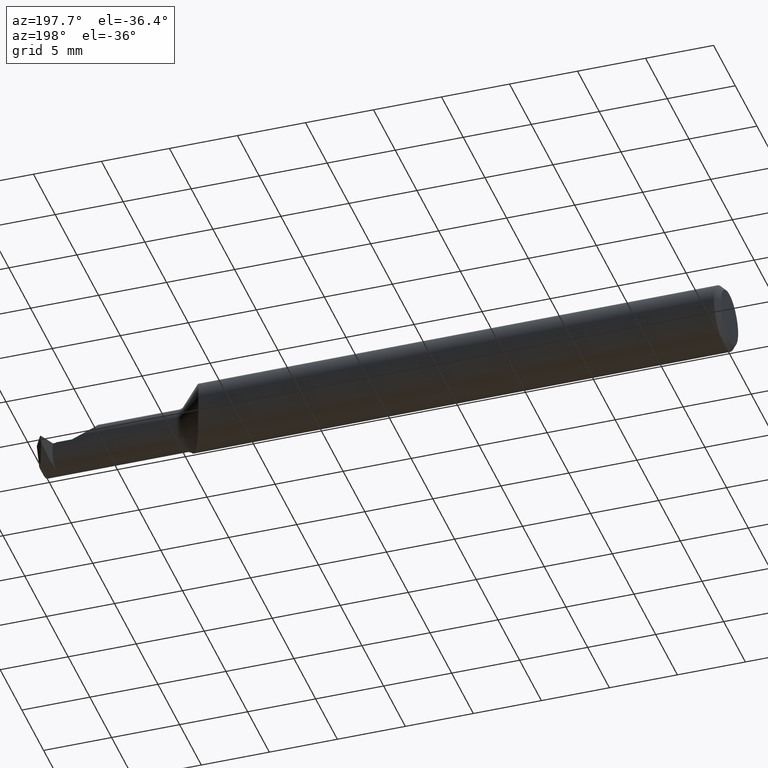
[diagram: clean part render]
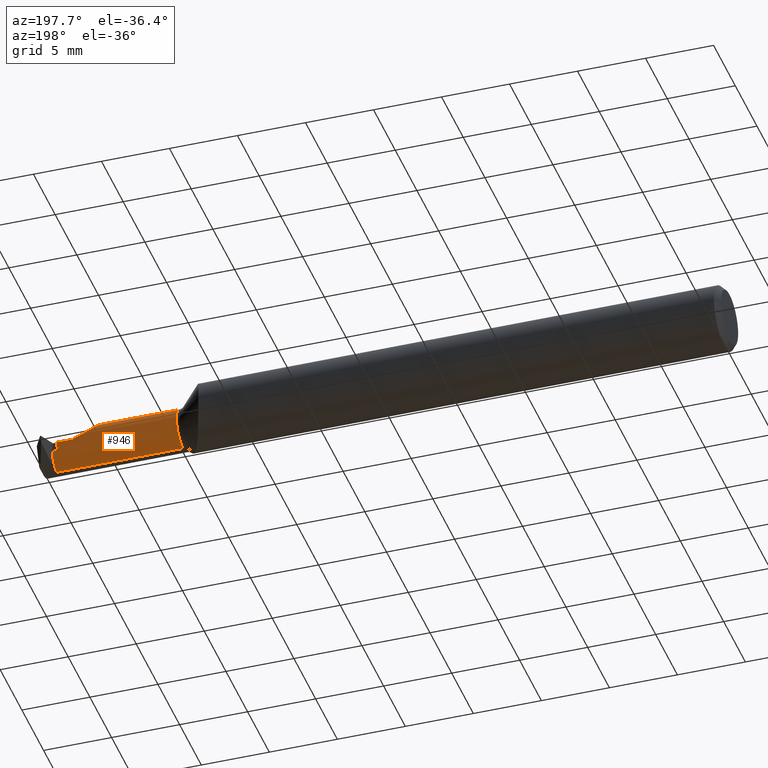
[diagram: same view with one face highlighted and labeled with its STEP entity id]
A machine part, auxiliary view. The second image highlights one B-rep face of the part: STEP entity #946.
In plain terms, the highlighted cylindrical surface (edge-blend (fillet) strip) has radius 1.524 mm, axis along (-1, -0, -0).
Its self-contained STEP definition (entity closure, byte-faithful):
#2 = VERTEX_POINT ( 'NONE', #19 ) ;
#10 = CARTESIAN_POINT ( 'NONE',  ( 1.830600458473551351, 0.002083259414367063730, 0.03904835399511816935 ) ) ;
#19 = CARTESIAN_POINT ( 'NONE',  ( 1.851906877077855729, -0.03023756867875720955, 0.05849312292214417508 ) ) ;
#60 = CARTESIAN_POINT ( 'NONE',  ( 1.828637766704370504, -0.002732504099699658868, 0.04393003276619458775 ) ) ;
#61 = VECTOR ( 'NONE', #99, 39.37007874015748143 ) ;
#66 = VECTOR ( 'NONE', #489, 39.37007874015748143 ) ;
#74 = DIRECTION ( 'NONE',  ( -1.000000000000000000, -0.000000000000000000, -0.000000000000000000 ) ) ;
#97 = CARTESIAN_POINT ( 'NONE',  ( 1.831581804358141996, 0.004156940634857866392, 0.03632182018014318975 ) ) ;
#99 = DIRECTION ( 'NONE',  ( -1.000000000000000000, -0.000000000000000000, -0.000000000000000000 ) ) ;
#117 = ORIENTED_EDGE ( 'NONE', *, *, #928, .F. ) ;
#166 = CYLINDRICAL_SURFACE ( 'NONE', #1018, 0.05999999999999999778 ) ;
#174 = CARTESIAN_POINT ( 'NONE',  ( 1.958797035050163338, -0.0006669446669314012081, -0.04789326579007528728 ) ) ;
#176 = CARTESIAN_POINT ( 'NONE',  ( 1.944321998928400186, 0.01630738323021269434, -0.003332481734146688305 ) ) ;
#179 = VECTOR ( 'NONE', #74, 39.37007874015748143 ) ;
#185 = ORIENTED_EDGE ( 'NONE', *, *, #931, .T. ) ;
#191 = AXIS2_PLACEMENT_3D ( 'NONE', #895, #239, #990 ) ;
#239 = DIRECTION ( 'NONE',  ( 1.000000000000000000, 0.000000000000000000, 0.000000000000000000 ) ) ;
#245 = CARTESIAN_POINT ( 'NONE',  ( 1.896798800813388919, 0.01630738323021245495, -0.003332481734146670958 ) ) ;
#251 = CARTESIAN_POINT ( 'NONE',  ( 1.960594488478455855, -0.02042647743067263835, -0.06000000000000001860 ) ) ;
#259 = CARTESIAN_POINT ( 'NONE',  ( 1.850904410375079800, -0.03462579763657993442, 0.05949558962491954817 ) ) ;
#265 = CARTESIAN_POINT ( 'NONE',  ( 1.851906877077855729, -0.03023756867875720955, 0.05849312292214417508 ) ) ;
#268 = CARTESIAN_POINT ( 'NONE',  ( 1.961119976209501070, -0.04360000000000001374, -0.06000000000000001166 ) ) ;
#277 = CARTESIAN_POINT ( 'NONE',  ( 1.896798800813388919, 0.01630738323021245495, -0.003332481734146670958 ) ) ;
#280 = CARTESIAN_POINT ( 'NONE',  ( 1.851906877077855729, -0.03023756867875720955, 0.05849312292214417508 ) ) ;
#305 = VERTEX_POINT ( 'NONE', #634 ) ;
#322 = CARTESIAN_POINT ( 'NONE',  ( 1.942620373527617961, 0.01584213065578381555, -0.01169623778705007784 ) ) ;
#328 = CARTESIAN_POINT ( 'NONE',  ( 1.961119976209501070, -0.04360000000000001374, -0.06000000000000001166 ) ) ;
#336 = CARTESIAN_POINT ( 'NONE',  ( 1.831581804358141996, 0.004156940634857866392, 0.03632182018014318975 ) ) ;
#343 = CARTESIAN_POINT ( 'NONE',  ( 1.956257227912775010, 0.009856536218723200085, -0.02724699498103110365 ) ) ;
#344 = VERTEX_POINT ( 'NONE', #715 ) ;
#355 = EDGE_CURVE ( 'NONE', #905, #485, #367, .T. ) ;
#367 = LINE ( 'NONE', #697, #870 ) ;
#375 = EDGE_CURVE ( 'NONE', #427, #2, #564, .T. ) ;
#378 = EDGE_LOOP ( 'NONE', ( #117, #879, #185, #417, #734, #982, #543, #664, #682, #859, #617 ) ) ;
#385 = DIRECTION ( 'NONE',  ( -1.000000000000000000, -0.000000000000000000, -0.000000000000000000 ) ) ;
#395 = CARTESIAN_POINT ( 'NONE',  ( 1.939456536218723048, 0.009856536218723252127, -0.02724699498103093712 ) ) ;
#406 = DIRECTION ( 'NONE',  ( 0.000000000000000000, 0.000000000000000000, 1.000000000000000000 ) ) ;
#415 = CARTESIAN_POINT ( 'NONE',  ( 1.584999999999999964, -0.04360000000000000681, 0.000000000000000000 ) ) ;
#417 = ORIENTED_EDGE ( 'NONE', *, *, #724, .F. ) ;
#427 = VERTEX_POINT ( 'NONE', #60 ) ;
#428 = CARTESIAN_POINT ( 'NONE',  ( 1.849695257096396706, 0.01321344009151778111, 0.01973603118922271846 ) ) ;
#431 = CARTESIAN_POINT ( 'NONE',  ( 1.850399999999999379, -0.04360000000000000681, 0.05999999999999999778 ) ) ;
#468 = EDGE_CURVE ( 'NONE', #1023, #521, #902, .T. ) ;
#485 = VERTEX_POINT ( 'NONE', #245 ) ;
#489 = DIRECTION ( 'NONE',  ( -1.000000000000000000, -0.000000000000000000, -0.000000000000000000 ) ) ;
#490 =( BOUNDED_CURVE ( )  B_SPLINE_CURVE ( 3, ( #985, #816, #322, #176 ),
 .UNSPECIFIED., .F., .T. ) 
 B_SPLINE_CURVE_WITH_KNOTS ( ( 4, 4 ),
 ( 1.099415917083573335, 1.515226368782238930 ),
 .UNSPECIFIED. ) 
 CURVE ( )  GEOMETRIC_REPRESENTATION_ITEM ( )  RATIONAL_B_SPLINE_CURVE ( ( 1.000000000000000000, 0.9856436299845908744, 0.9856436299845908744, 1.000000000000000000 ) ) 
 REPRESENTATION_ITEM ( '' )  );
#493 = B_SPLINE_CURVE_WITH_KNOTS ( 'NONE', 3,
 ( #277, #936, #700, #578, #428, #907, #510, #524, #841, #97 ),
 .UNSPECIFIED., .F., .F.,
 ( 4, 2, 2, 2, 4 ),
 ( 0.0009894442116405225123, 0.001991382442788758658, 0.002492351558362867515, 0.002742836116149930184, 0.002993320673936992853 ),
 .UNSPECIFIED. ) ;
#510 = CARTESIAN_POINT ( 'NONE',  ( 1.839616524375997875, 0.009799422747696301048, 0.02746820489399859344 ) ) ;
#521 = VERTEX_POINT ( 'NONE', #395 ) ;
#524 = CARTESIAN_POINT ( 'NONE',  ( 1.835158310929367209, 0.007382547275123969334, 0.03172980465155155611 ) ) ;
#543 = ORIENTED_EDGE ( 'NONE', *, *, #913, .T. ) ;
#546 = B_SPLINE_CURVE_WITH_KNOTS ( 'NONE', 3,
 ( #977, #738, #10, #336 ),
 .UNSPECIFIED., .F., .F.,
 ( 4, 4 ),
 ( 0.000000000000000000, 1.000000000000000000 ),
 .UNSPECIFIED. ) ;
#564 = B_SPLINE_CURVE_WITH_KNOTS ( 'NONE', 3,
 ( #772, #778, #1025, #613, #789, #860, #624, #280 ),
 .UNSPECIFIED., .F., .F.,
 ( 4, 2, 2, 4 ),
 ( 0.003265008453683670292, 0.003523301931623198675, 0.003781595409562727057, 0.004298182365441769945 ),
 .UNSPECIFIED. ) ;
#570 =( BOUNDED_CURVE ( )  B_SPLINE_CURVE ( 3, ( #328, #251, #174, #828 ),
 .UNSPECIFIED., .F., .T. ) 
 B_SPLINE_CURVE_WITH_KNOTS ( ( 4, 4 ),
 ( 3.342305517569141404, 4.441721434652711409 ),
 .UNSPECIFIED. ) 
 CURVE ( )  GEOMETRIC_REPRESENTATION_ITEM ( )  RATIONAL_B_SPLINE_CURVE ( ( 1.000000000000000000, 0.9017847546951444082, 0.9017847546951444082, 1.000000000000000000 ) ) 
 REPRESENTATION_ITEM ( '' )  );
#578 = CARTESIAN_POINT ( 'NONE',  ( 1.855293940090975591, 0.01424547682993088440, 0.01626302716776295218 ) ) ;
#581 = VERTEX_POINT ( 'NONE', #1049 ) ;
#597 = CARTESIAN_POINT ( 'NONE',  ( 1.831581804358141996, 0.004156940634857866392, 0.03632182018014318975 ) ) ;
#613 = CARTESIAN_POINT ( 'NONE',  ( 1.832015445987408286, -0.01315750920024308553, 0.05179725939714346916 ) ) ;
#617 = ORIENTED_EDGE ( 'NONE', *, *, #468, .F. ) ;
#623 = EDGE_CURVE ( 'NONE', #485, #656, #493, .T. ) ;
#624 = CARTESIAN_POINT ( 'NONE',  ( 1.846216594283215162, -0.02665999887961253284, 0.05767584683309600474 ) ) ;
#628 = VERTEX_POINT ( 'NONE', #268 ) ;
#634 = CARTESIAN_POINT ( 'NONE',  ( 1.850399999999999379, -0.04360000000000000681, 0.05999999999999999778 ) ) ;
#656 = VERTEX_POINT ( 'NONE', #597 ) ;
#664 = ORIENTED_EDGE ( 'NONE', *, *, #623, .F. ) ;
#679 = CARTESIAN_POINT ( 'NONE',  ( 1.584999999999999964, -0.04359999999999999987, -0.05999999999999999778 ) ) ;
#682 = ORIENTED_EDGE ( 'NONE', *, *, #355, .F. ) ;
#697 = CARTESIAN_POINT ( 'NONE',  ( 1.584999999999999964, 0.01630738323021278108, -0.003332481734146682667 ) ) ;
#700 = CARTESIAN_POINT ( 'NONE',  ( 1.872404121683008515, 0.01637454509895294730, 0.006737574455211994481 ) ) ;
#713 = LINE ( 'NONE', #720, #179 ) ;
#715 = CARTESIAN_POINT ( 'NONE',  ( 1.595355339059326916, -0.04360000000000000681, 0.05999999999999999778 ) ) ;
#720 = CARTESIAN_POINT ( 'NONE',  ( 1.584999999999999964, -0.04360000000000000681, 0.05999999999999999778 ) ) ;
#724 = EDGE_CURVE ( 'NONE', #305, #344, #713, .T. ) ;
#734 = ORIENTED_EDGE ( 'NONE', *, *, #1045, .T. ) ;
#738 = CARTESIAN_POINT ( 'NONE',  ( 1.829619112588960927, -0.0002244556728587228725, 0.04159683034526332618 ) ) ;
#772 = CARTESIAN_POINT ( 'NONE',  ( 1.828637766704370504, -0.002732504099699658868, 0.04393003276619458775 ) ) ;
#778 = CARTESIAN_POINT ( 'NONE',  ( 1.828496618118776729, -0.005243750599841655660, 0.04626621031004977264 ) ) ;
#789 = CARTESIAN_POINT ( 'NONE',  ( 1.834005204430111169, -0.01567700712498830071, 0.05316835802678369222 ) ) ;
#816 = CARTESIAN_POINT ( 'NONE',  ( 1.940974930028682266, 0.01366052842983852926, -0.01978385097007516122 ) ) ;
#823 = DIRECTION ( 'NONE',  ( -1.000000000000000000, -0.000000000000000000, -0.000000000000000000 ) ) ;
#828 = CARTESIAN_POINT ( 'NONE',  ( 1.956257227912775010, 0.009856536218723200085, -0.02724699498103110365 ) ) ;
#833 = CARTESIAN_POINT ( 'NONE',  ( 1.944321998928400186, 0.01630738323021269434, -0.003332481734146688305 ) ) ;
#841 = CARTESIAN_POINT ( 'NONE',  ( 1.833142206435870447, 0.005937851138374582692, 0.03398022945672873885 ) ) ;
#843 = LINE ( 'NONE', #679, #61 ) ;
#859 = ORIENTED_EDGE ( 'NONE', *, *, #880, .F. ) ;
#860 = CARTESIAN_POINT ( 'NONE',  ( 1.840702592381038727, -0.02263008223520000112, 0.05644939197534687425 ) ) ;
#870 = VECTOR ( 'NONE', #385, 39.37007874015748143 ) ;
#879 = ORIENTED_EDGE ( 'NONE', *, *, #989, .T. ) ;
#880 = EDGE_CURVE ( 'NONE', #521, #905, #490, .T. ) ;
#886 = CARTESIAN_POINT ( 'NONE',  ( 1.584999999999999964, 0.009856536218723205289, -0.02724699498103109671 ) ) ;
#895 = CARTESIAN_POINT ( 'NONE',  ( 1.595355339059326916, -0.04360000000000000681, 0.000000000000000000 ) ) ;
#899 = FACE_OUTER_BOUND ( 'NONE', #378, .T. ) ;
#902 = LINE ( 'NONE', #886, #66 ) ;
#905 = VERTEX_POINT ( 'NONE', #833 ) ;
#907 = CARTESIAN_POINT ( 'NONE',  ( 1.842042416001421934, 0.01076527871207576953, 0.02547029536719066026 ) ) ;
#913 = EDGE_CURVE ( 'NONE', #427, #656, #546, .T. ) ;
#925 =( BOUNDED_CURVE ( )  B_SPLINE_CURVE ( 3, ( #431, #999, #259, #265 ),
 .UNSPECIFIED., .F., .T. ) 
 B_SPLINE_CURVE_WITH_KNOTS ( ( 4, 4 ),
 ( 0.000000000000000000, 0.2245905240414969029 ),
 .UNSPECIFIED. ) 
 CURVE ( )  GEOMETRIC_REPRESENTATION_ITEM ( )  RATIONAL_B_SPLINE_CURVE ( ( 1.000000000000000000, 0.9958010066806171068, 0.9958010066806171068, 1.000000000000000000 ) ) 
 REPRESENTATION_ITEM ( '' )  );
#928 = EDGE_CURVE ( 'NONE', #628, #1023, #570, .T. ) ;
#931 = EDGE_CURVE ( 'NONE', #581, #344, #1037, .T. ) ;
#936 = CARTESIAN_POINT ( 'NONE',  ( 1.884521827079564948, 0.01657004411045825965, 0.001389322394955670075 ) ) ;
#946 = ADVANCED_FACE ( 'NONE', ( #899 ), #166, .T. ) ;
#977 = CARTESIAN_POINT ( 'NONE',  ( 1.828637766704370504, -0.002732504099699658868, 0.04393003276619458775 ) ) ;
#982 = ORIENTED_EDGE ( 'NONE', *, *, #375, .F. ) ;
#985 = CARTESIAN_POINT ( 'NONE',  ( 1.939456536218723048, 0.009856536218723252127, -0.02724699498103093712 ) ) ;
#989 = EDGE_CURVE ( 'NONE', #628, #581, #843, .T. ) ;
#990 = DIRECTION ( 'NONE',  ( 0.000000000000000000, 0.000000000000000000, 1.000000000000000000 ) ) ;
#999 = CARTESIAN_POINT ( 'NONE',  ( 1.850399999999999157, -0.03909872319486487613, 0.06000000000000001860 ) ) ;
#1018 = AXIS2_PLACEMENT_3D ( 'NONE', #415, #823, #406 ) ;
#1023 = VERTEX_POINT ( 'NONE', #343 ) ;
#1025 = CARTESIAN_POINT ( 'NONE',  ( 1.829251097877477861, -0.007957838879251381836, 0.04836670009201421427 ) ) ;
#1037 = CIRCLE ( 'NONE', #191, 0.05999999999999999778 ) ;
#1045 = EDGE_CURVE ( 'NONE', #305, #2, #925, .T. ) ;
#1049 = CARTESIAN_POINT ( 'NONE',  ( 1.595355339059326916, -0.04359999999999999987, -0.05999999999999999778 ) ) ;